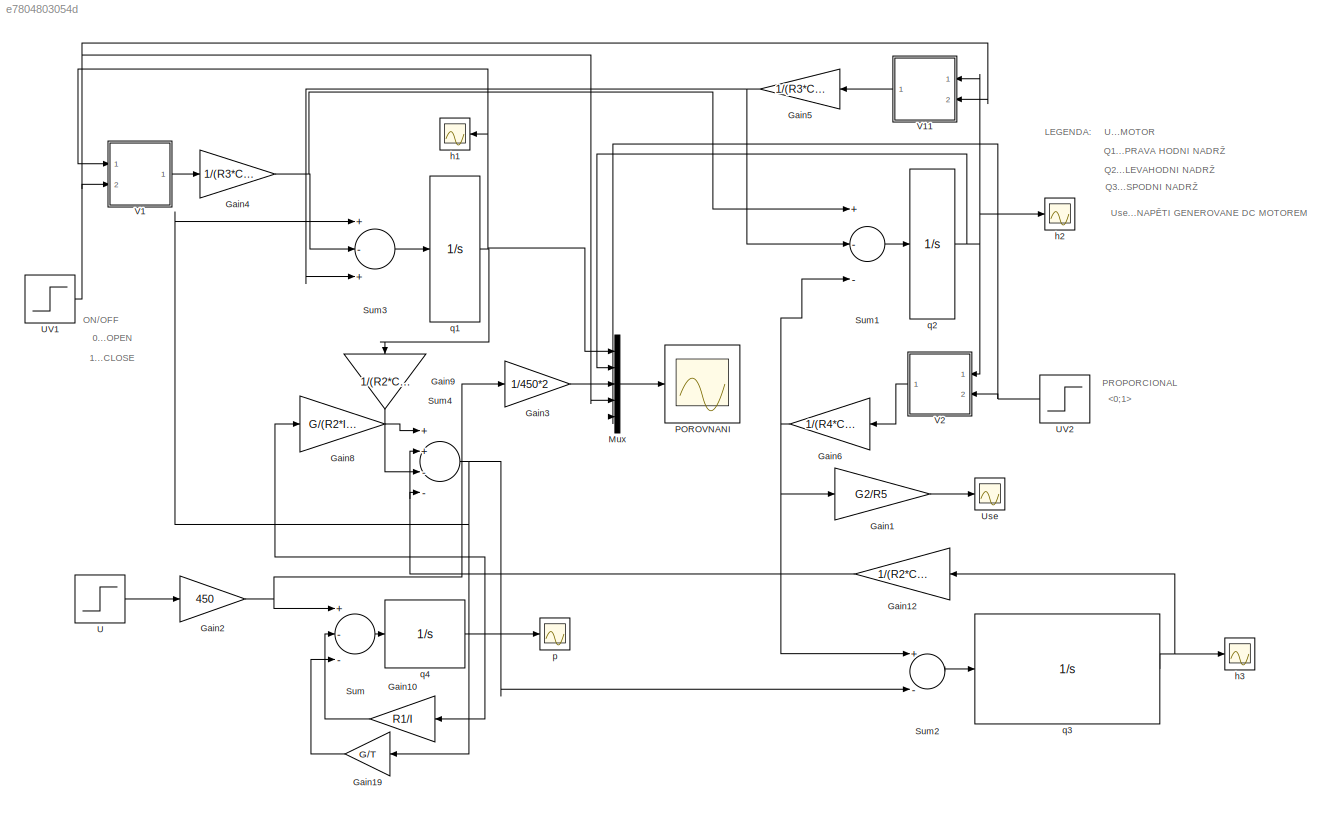
MODEL slx_e7804803054d
KIND model
BLOCK [Gain] Gain1
  Gain = G2/R5
  OutDataTypeStr = Inherit: Inherit via internal rule
  ParamDataTypeStr = Inherit: Inherit via internal rule
  SaturateOnIntegerOverflow = off
BLOCK [Gain] Gain10
  Gain = R1/I
  OutDataTypeStr = Inherit: Inherit via internal rule
  ParamDataTypeStr = Inherit: Inherit via internal rule
  SaturateOnIntegerOverflow = off
BLOCK [Gain] Gain12
  Gain = 1/(R2*C3)
  OutDataTypeStr = Inherit: Inherit via internal rule
  ParamDataTypeStr = Inherit: Inherit via internal rule
  SaturateOnIntegerOverflow = off
BLOCK [Gain] Gain19
  Gain = G/T
  OutDataTypeStr = Inherit: Inherit via internal rule
  ParamDataTypeStr = Inherit: Inherit via internal rule
  SaturateOnIntegerOverflow = off
BLOCK [Gain] Gain2
  Gain = 450
  OutDataTypeStr = Inherit: Inherit via internal rule
  ParamDataTypeStr = Inherit: Inherit via internal rule
  SaturateOnIntegerOverflow = off
BLOCK [Gain] Gain3
  Gain = 1/450*2
  OutDataTypeStr = Inherit: Inherit via internal rule
  ParamDataTypeStr = Inherit: Inherit via internal rule
  SaturateOnIntegerOverflow = off
BLOCK [Gain] Gain4
  Gain = 1/(R3*C1)
  OutDataTypeStr = Inherit: Inherit via internal rule
  ParamDataTypeStr = Inherit: Inherit via internal rule
  SaturateOnIntegerOverflow = off
BLOCK [Gain] Gain5
  Gain = 1/(R3*C2)
  OutDataTypeStr = Inherit: Inherit via internal rule
  ParamDataTypeStr = Inherit: Inherit via internal rule
  SaturateOnIntegerOverflow = off
BLOCK [Gain] Gain6
  Gain = 1/(R4*C2)
  OutDataTypeStr = Inherit: Inherit via internal rule
  ParamDataTypeStr = Inherit: Inherit via internal rule
  SaturateOnIntegerOverflow = off
BLOCK [Gain] Gain8
  Gain = G/(R2*I*T)
  OutDataTypeStr = Inherit: Inherit via internal rule
  ParamDataTypeStr = Inherit: Inherit via internal rule
  SaturateOnIntegerOverflow = off
BLOCK [Gain] Gain9
  Gain = 1/(R2*C1)
  OutDataTypeStr = Inherit: Inherit via internal rule
  ParamDataTypeStr = Inherit: Inherit via internal rule
  SaturateOnIntegerOverflow = off
BLOCK [Mux] Mux
  DisplayOption = bar
  Inputs = 5
  Ports = [5, 1]
BLOCK [Scope] POROVNANI 
  DataFormat = StructureWithTime
  Floating = off
  LimitDataPoints = off
  NumInputPorts = 1
  Ports = [1]
  SampleTime = 0
  ShowLegends = off
  TimeRange = 350
  YMax = 0.014
  YMin = 0
BLOCK [Sum] Sum
  InputSameDT = off
  Inputs = +--
  OutDataTypeStr = Inherit: Inherit via internal rule
  Ports = [3, 1]
  SaturateOnIntegerOverflow = off
BLOCK [Sum] Sum1
  InputSameDT = off
  Inputs = +--
  OutDataTypeStr = Inherit: Inherit via internal rule
  Ports = [3, 1]
  SaturateOnIntegerOverflow = off
BLOCK [Sum] Sum2
  InputSameDT = off
  Inputs = +-
  OutDataTypeStr = Inherit: Inherit via internal rule
  Ports = [2, 1]
  SaturateOnIntegerOverflow = off
BLOCK [Sum] Sum3
  InputSameDT = off
  Inputs = +-+
  OutDataTypeStr = Inherit: Inherit via internal rule
  Ports = [3, 1]
  SaturateOnIntegerOverflow = off
BLOCK [Sum] Sum4
  InputSameDT = off
  Inputs = ++--
  OutDataTypeStr = Inherit: Inherit via internal rule
  Ports = [4, 1]
  SaturateOnIntegerOverflow = off
BLOCK [Step] U
  After = 0
  Before = 1
  SampleTime = 0
  Time = 120
BLOCK [Step] UV1
  After = 0
  Before = 1
  SampleTime = 0
  Time = 50
BLOCK [Step] UV2
  SampleTime = 0
  Time = 250
BLOCK [Scope] Use
  DataFormat = StructureWithTime
  Floating = off
  LimitDataPoints = off
  NumInputPorts = 1
  Ports = [1]
  SampleTime = 0
  SaveName = h
  SaveToWorkspace = on
  ShowLegends = off
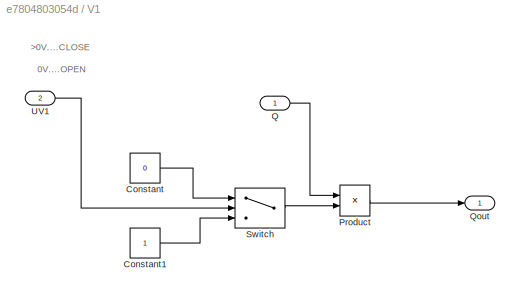
BLOCK [SubSystem] V1
  FunctionWithSeparateData = off
  MaskHideContents = off
  MinAlgLoopOccurrences = off
  Opaque = off
  Ports = [2, 1]
  PropExecContextOutsideSubsystem = off
  RTWSystemCode = Auto
  RequestExecContextInheritance = off
BLOCK [Constant] V1/Constant
  Value = 0
BLOCK [Constant] V1/Constant1
BLOCK [Product] V1/Product
  InputSameDT = off
  OutDataTypeStr = Inherit: Inherit via internal rule
  Ports = [2, 1]
  SaturateOnIntegerOverflow = off
BLOCK [Inport] V1/Q
  IconDisplay = Port number
BLOCK [Outport] V1/Qout
  IconDisplay = Port number
BLOCK [Switch] V1/Switch
  Criteria = u2 > Threshold
  InputSameDT = off
  SaturateOnIntegerOverflow = off
BLOCK [Inport] V1/UV1
  IconDisplay = Port number
  Port = 2
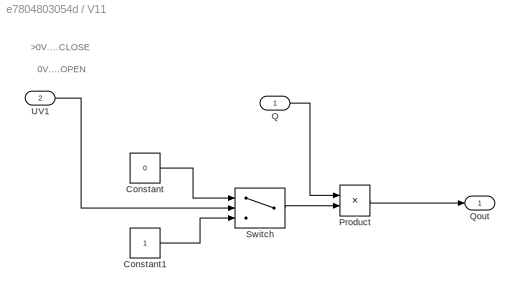
BLOCK [SubSystem] V11
  FunctionWithSeparateData = off
  MaskHideContents = off
  MinAlgLoopOccurrences = off
  Opaque = off
  Ports = [2, 1]
  PropExecContextOutsideSubsystem = off
  RTWSystemCode = Auto
  RequestExecContextInheritance = off
BLOCK [Constant] V11/Constant
  Value = 0
BLOCK [Constant] V11/Constant1
BLOCK [Product] V11/Product
  InputSameDT = off
  OutDataTypeStr = Inherit: Inherit via internal rule
  Ports = [2, 1]
  SaturateOnIntegerOverflow = off
BLOCK [Inport] V11/Q
  IconDisplay = Port number
BLOCK [Outport] V11/Qout
  IconDisplay = Port number
BLOCK [Switch] V11/Switch
  Criteria = u2 > Threshold
  InputSameDT = off
  SaturateOnIntegerOverflow = off
BLOCK [Inport] V11/UV1
  IconDisplay = Port number
  Port = 2
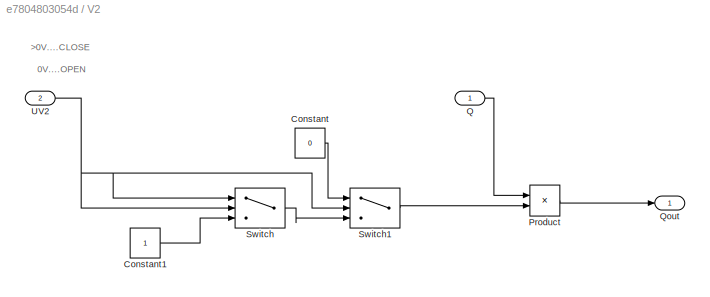
BLOCK [SubSystem] V2
  FunctionWithSeparateData = off
  MaskHideContents = off
  MinAlgLoopOccurrences = off
  Opaque = off
  Ports = [2, 1]
  PropExecContextOutsideSubsystem = off
  RTWSystemCode = Auto
  RequestExecContextInheritance = off
BLOCK [Constant] V2/Constant
  Value = 0
BLOCK [Constant] V2/Constant1
BLOCK [Product] V2/Product
  InputSameDT = off
  OutDataTypeStr = Inherit: Inherit via internal rule
  Ports = [2, 1]
  SaturateOnIntegerOverflow = off
BLOCK [Inport] V2/Q
  IconDisplay = Port number
BLOCK [Outport] V2/Qout
  IconDisplay = Port number
BLOCK [Switch] V2/Switch
  Criteria = u2 > Threshold
  InputSameDT = off
  SaturateOnIntegerOverflow = off
BLOCK [Switch] V2/Switch1
  InputSameDT = off
  SaturateOnIntegerOverflow = off
  Threshold = 1
BLOCK [Inport] V2/UV2
  IconDisplay = Port number
  Port = 2
BLOCK [Scope] h1
  DataFormat = StructureWithTime
  Floating = off
  LimitDataPoints = off
  NumInputPorts = 1
  Ports = [1]
  SampleTime = 0
  SaveName = ScopeData1
  ShowLegends = off
BLOCK [Scope] h2
  DataFormat = StructureWithTime
  Floating = off
  LimitDataPoints = off
  NumInputPorts = 1
  Ports = [1]
  SampleTime = 0
  SaveName = ScopeData2
  ShowLegends = off
BLOCK [Scope] h3
  DataFormat = StructureWithTime
  Floating = off
  LimitDataPoints = off
  NumInputPorts = 1
  Ports = [1]
  SampleTime = 0
  SaveName = h1
  ShowLegends = off
BLOCK [Scope] p
  DataFormat = StructureWithTime
  Floating = off
  LimitDataPoints = off
  NumInputPorts = 1
  Ports = [1]
  SampleTime = 0
  SaveName = ScopeData4
  ShowLegends = off
BLOCK [Integrator] q1
  LimitOutput = on
  LowerSaturationLimit = 0
  Ports = [1, 1]
BLOCK [Integrator] q2
  LimitOutput = on
  LowerSaturationLimit = 0
  Ports = [1, 1]
BLOCK [Integrator] q3
  InitialCondition = 10
  LimitOutput = on
  LowerSaturationLimit = 0
  Ports = [1, 1]
BLOCK [Integrator] q4
  Ports = [1, 1]
ANNOTATION (root): 0...OPEN
ANNOTATION (root): 1...CLOSE
ANNOTATION (root): LEGENDA:
ANNOTATION (root): ON/OFF
ANNOTATION (root): PROPORCIONAL
ANNOTATION (root): Q1...PRAVA HODNI NADRŽ
ANNOTATION (root): Q2...LEVAHODNI NADRŽ
ANNOTATION (root): Q3...SPODNI NADRŽ
ANNOTATION (root): U...MOTOR
ANNOTATION (root): Use...NAPĚTI GENEROVANE DC MOTOREM
ANNOTATION V1: 0V....OPEN
ANNOTATION V1: >0V....CLOSE
ANNOTATION V11: 0V....OPEN
ANNOTATION V11: >0V....CLOSE
ANNOTATION V2: 0V....OPEN
ANNOTATION V2: >0V....CLOSE
LINE Gain10:1 -> Sum:2
NET Gain12:1 -> Sum4:2, Sum4:4
LINE Gain19:1 -> Sum:3
LINE Gain1:1 -> Use:1
NET Gain2:1 -> Gain3:1, Sum:1
LINE Gain3:1 -> Mux:3
NET Gain4:1 -> Sum1:1, Sum3:2
NET Gain5:1 -> Sum1:2, Sum3:3
NET Gain6:1 -> Gain1:1, Sum1:3, Sum2:1
LINE Gain8:1 -> Sum4:1
LINE Gain9:1 -> Sum4:3
LINE Mux:1 -> POROVNANI :1
LINE Sum1:1 -> q2:1
LINE Sum2:1 -> q3:1
LINE Sum3:1 -> q1:1
NET Sum4:1 -> Gain19:1, Sum2:2, Sum3:1
LINE Sum:1 -> q4:1
LINE U:1 -> Gain2:1
NET UV1:1 -> Mux:4, V11:2, V1:2
NET UV2:1 -> Mux:5, V2:2
LINE V1/Constant1:1 -> V1/Switch:3
LINE V1/Constant:1 -> V1/Switch:1
LINE V1/Product:1 -> V1/Qout:1
LINE V1/Q:1 -> V1/Product:1
LINE V1/Switch:1 -> V1/Product:2
LINE V1/UV1:1 -> V1/Switch:2
LINE V11/Constant1:1 -> V11/Switch:3
LINE V11/Constant:1 -> V11/Switch:1
LINE V11/Product:1 -> V11/Qout:1
LINE V11/Q:1 -> V11/Product:1
LINE V11/Switch:1 -> V11/Product:2
LINE V11/UV1:1 -> V11/Switch:2
LINE V11:1 -> Gain5:1
LINE V1:1 -> Gain4:1
LINE V2/Constant1:1 -> V2/Switch:3
LINE V2/Constant:1 -> V2/Switch1:1
LINE V2/Product:1 -> V2/Qout:1
LINE V2/Q:1 -> V2/Product:1
LINE V2/Switch1:1 -> V2/Product:2
LINE V2/Switch:1 -> V2/Switch1:3
NET V2/UV2:1 -> V2/Switch1:2, V2/Switch:1, V2/Switch:2
LINE V2:1 -> Gain6:1
NET q1:1 -> Gain9:1, Mux:1, V1:1, h1:1
NET q2:1 -> Mux:2, V11:1, V2:1, h2:1
NET q3:1 -> Gain12:1, h3:1
NET q4:1 -> Gain10:1, Gain8:1, p:1
note: NET lines group one-source signal fan-out (src -> all destinations, sorted); 1:1 wires keep LINE
